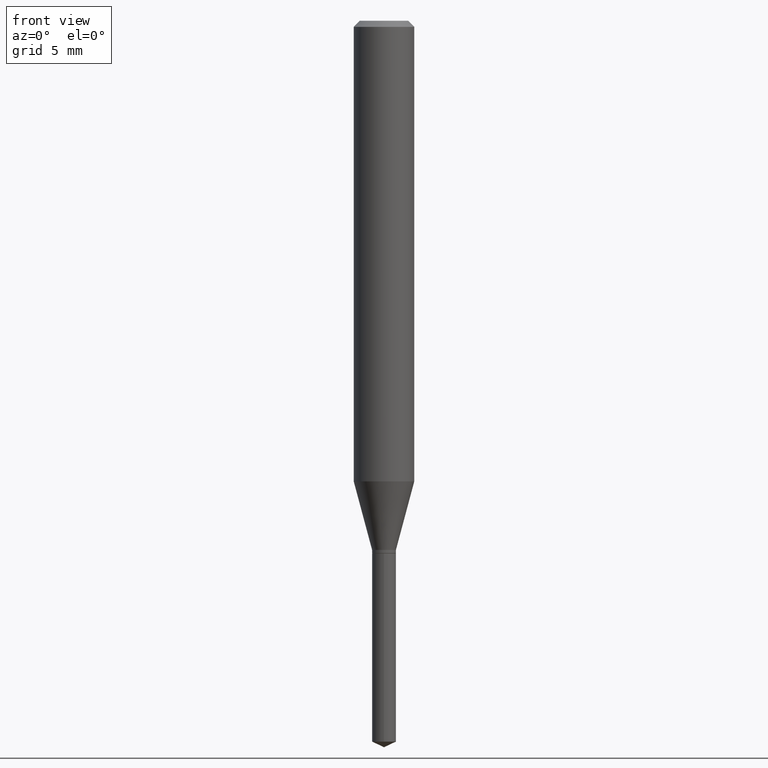
[diagram: clean part render]
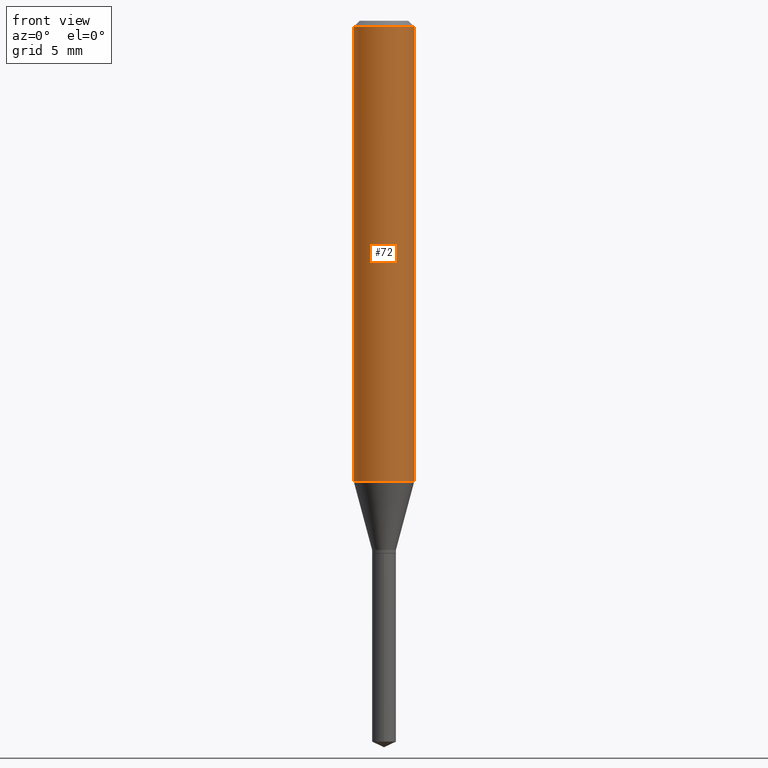
[diagram: same view with one face highlighted and labeled with its STEP entity id]
A machine part, front view. The second image highlights one B-rep face of the part: STEP entity #72.
In plain terms, the highlighted cylindrical surface (edge-blend (fillet) strip) has radius 1.5875 mm, axis along (-0, 0, 1).
Its self-contained STEP definition (entity closure, byte-faithful):
#18 = EDGE_CURVE ( 'NONE', #198, #127, #447, .T. ) ;
#29 = EDGE_CURVE ( 'NONE', #198, #332, #451, .T. ) ;
#39 = DIRECTION ( 'NONE',  ( -2.445468806185136877E-29, 3.491481338843145188E-15, 1.000000000000000000 ) ) ;
#40 = DIRECTION ( 'NONE',  ( 1.000000000000000000, -6.982962677686265922E-15, 0.000000000000000000 ) ) ;
#44 = CARTESIAN_POINT ( 'NONE',  ( -0.06250000000000012490, -2.876851681035814887E-15, -0.9511552743931396270 ) ) ;
#60 = DIRECTION ( 'NONE',  ( 1.000000000000000000, -6.982962677686264344E-15, 0.000000000000000000 ) ) ;
#71 = ORIENTED_EDGE ( 'NONE', *, *, #18, .T. ) ;
#72 = ADVANCED_FACE ( 'NONE', ( #295 ), #229, .T. ) ;
#74 = VECTOR ( 'NONE', #39, 39.37007874015748143 ) ;
#80 = CARTESIAN_POINT ( 'NONE',  ( 3.056836007731442729E-31, -4.364351673553962300E-17, -0.01250000000000008916 ) ) ;
#127 = VERTEX_POINT ( 'NONE', #456 ) ;
#138 = AXIS2_PLACEMENT_3D ( 'NONE', #382, #184, #334 ) ;
#142 = CARTESIAN_POINT ( 'NONE',  ( 0.06250000000000006939, -4.364351673553921624E-16, 3.047610484872463374E-30 ) ) ;
#146 = CARTESIAN_POINT ( 'NONE',  ( 2.326020553366887075E-29, -3.320940890885878686E-15, -0.9511552743931396270 ) ) ;
#180 = LINE ( 'NONE', #142, #303 ) ;
#182 = VERTEX_POINT ( 'NONE', #379 ) ;
#184 = DIRECTION ( 'NONE',  ( -2.445468806185136597E-29, 3.491481338843145583E-15, 1.000000000000000000 ) ) ;
#198 = VERTEX_POINT ( 'NONE', #44 ) ;
#200 = AXIS2_PLACEMENT_3D ( 'NONE', #146, #246, #60 ) ;
#208 = CARTESIAN_POINT ( 'NONE',  ( -0.06250000000000006939, 4.440892098500631092E-16, -3.074334431409319267E-30 ) ) ;
#210 = EDGE_CURVE ( 'NONE', #332, #182, #267, .T. ) ;
#229 = CYLINDRICAL_SURFACE ( 'NONE', #138, 0.06250000000000006939 ) ;
#246 = DIRECTION ( 'NONE',  ( -2.445468806185136597E-29, 3.491481338843145583E-15, 1.000000000000000000 ) ) ;
#248 = DIRECTION ( 'NONE',  ( -2.445468806185136877E-29, 3.491481338843145188E-15, 1.000000000000000000 ) ) ;
#249 = ORIENTED_EDGE ( 'NONE', *, *, #425, .T. ) ;
#267 = CIRCLE ( 'NONE', #370, 0.06250000000000001388 ) ;
#274 = CARTESIAN_POINT ( 'NONE',  ( -0.06250000000000001388, -1.238202993960645522E-15, -0.01250000000000008916 ) ) ;
#279 = ORIENTED_EDGE ( 'NONE', *, *, #210, .F. ) ;
#295 = FACE_OUTER_BOUND ( 'NONE', #471, .T. ) ;
#303 = VECTOR ( 'NONE', #248, 39.37007874015748143 ) ;
#332 = VERTEX_POINT ( 'NONE', #274 ) ;
#334 = DIRECTION ( 'NONE',  ( 1.000000000000000000, -6.982962677686266711E-15, 4.876176775795935793E-29 ) ) ;
#348 = ORIENTED_EDGE ( 'NONE', *, *, #29, .F. ) ;
#370 = AXIS2_PLACEMENT_3D ( 'NONE', #80, #376, #40 ) ;
#376 = DIRECTION ( 'NONE',  ( -2.445468806185136597E-29, 3.491481338843145583E-15, 1.000000000000000000 ) ) ;
#379 = CARTESIAN_POINT ( 'NONE',  ( 0.06250000000000001388, -4.800786840909313294E-16, -0.01250000000000008916 ) ) ;
#382 = CARTESIAN_POINT ( 'NONE',  ( 0.000000000000000000, 0.000000000000000000, 0.000000000000000000 ) ) ;
#425 = EDGE_CURVE ( 'NONE', #127, #182, #180, .T. ) ;
#447 = CIRCLE ( 'NONE', #200, 0.06250000000000012490 ) ;
#451 = LINE ( 'NONE', #208, #74 ) ;
#456 = CARTESIAN_POINT ( 'NONE',  ( 0.06250000000000012490, -3.757376058241271144E-15, -0.9511552743931396270 ) ) ;
#471 = EDGE_LOOP ( 'NONE', ( #348, #71, #249, #279 ) ) ;